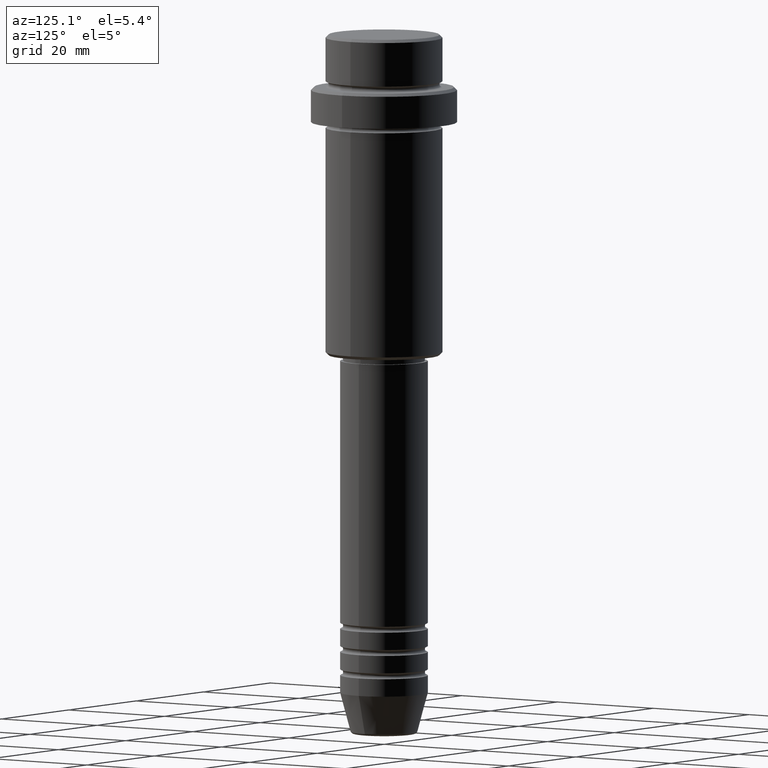
[diagram: clean part render]
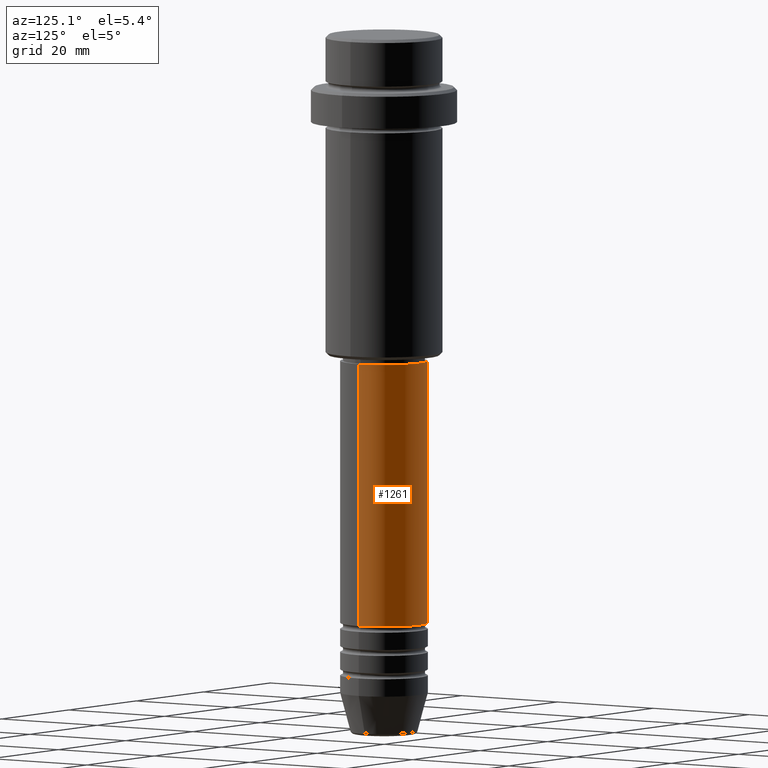
[diagram: same view with one face highlighted and labeled with its STEP entity id]
A machine part, auxiliary view. The second image highlights one B-rep face of the part: STEP entity #1261.
In plain terms, the highlighted cylindrical surface (partial cylindrical patch) has radius 7.5 mm, axis along (-0, -0, 1).
Its self-contained STEP definition (entity closure, byte-faithful):
#32 = CARTESIAN_POINT ( 'NONE',  ( -7.500000000000000000, 9.184850993605147944E-16, -56.00000000000002132 ) ) ;
#54 = VECTOR ( 'NONE', #668, 1000.000000000000000 ) ;
#156 = CYLINDRICAL_SURFACE ( 'NONE', #813, 7.500000000000000000 ) ;
#236 = ORIENTED_EDGE ( 'NONE', *, *, #1097, .F. ) ;
#303 = CARTESIAN_POINT ( 'NONE',  ( 0.000000000000000000, 0.000000000000000000, -56.00000000000002132 ) ) ;
#316 = DIRECTION ( 'NONE',  ( 1.000000000000000000, 0.000000000000000000, 0.000000000000000000 ) ) ;
#320 = AXIS2_PLACEMENT_3D ( 'NONE', #303, #1070, #316 ) ;
#329 = VERTEX_POINT ( 'NONE', #1182 ) ;
#350 = LINE ( 'NONE', #672, #1408 ) ;
#353 = EDGE_LOOP ( 'NONE', ( #632, #1282, #441, #236 ) ) ;
#441 = ORIENTED_EDGE ( 'NONE', *, *, #1398, .F. ) ;
#487 = DIRECTION ( 'NONE',  ( -0.000000000000000000, -0.000000000000000000, 1.000000000000000000 ) ) ;
#501 = AXIS2_PLACEMENT_3D ( 'NONE', #512, #959, #736 ) ;
#512 = CARTESIAN_POINT ( 'NONE',  ( 0.000000000000000000, 0.000000000000000000, -100.9999999999999005 ) ) ;
#572 = CARTESIAN_POINT ( 'NONE',  ( 7.500000000000000000, 0.000000000000000000, 0.000000000000000000 ) ) ;
#595 = CARTESIAN_POINT ( 'NONE',  ( 0.000000000000000000, 0.000000000000000000, 0.000000000000000000 ) ) ;
#603 = VERTEX_POINT ( 'NONE', #882 ) ;
#632 = ORIENTED_EDGE ( 'NONE', *, *, #769, .T. ) ;
#647 = CARTESIAN_POINT ( 'NONE',  ( 7.500000000000000000, 0.000000000000000000, -56.00000000000002132 ) ) ;
#668 = DIRECTION ( 'NONE',  ( -0.000000000000000000, -0.000000000000000000, 1.000000000000000000 ) ) ;
#672 = CARTESIAN_POINT ( 'NONE',  ( -7.500000000000000000, 9.184850993605147944E-16, 0.000000000000000000 ) ) ;
#736 = DIRECTION ( 'NONE',  ( 1.000000000000000000, 0.000000000000000000, 0.000000000000000000 ) ) ;
#769 = EDGE_CURVE ( 'NONE', #603, #329, #1062, .T. ) ;
#785 = LINE ( 'NONE', #572, #54 ) ;
#813 = AXIS2_PLACEMENT_3D ( 'NONE', #595, #487, #919 ) ;
#882 = CARTESIAN_POINT ( 'NONE',  ( 7.500000000000000000, 0.000000000000000000, -100.9999999999999005 ) ) ;
#894 = VERTEX_POINT ( 'NONE', #647 ) ;
#919 = DIRECTION ( 'NONE',  ( 1.000000000000000000, 0.000000000000000000, 0.000000000000000000 ) ) ;
#926 = CIRCLE ( 'NONE', #320, 7.500000000000000000 ) ;
#959 = DIRECTION ( 'NONE',  ( -0.000000000000000000, -0.000000000000000000, 1.000000000000000000 ) ) ;
#1036 = FACE_OUTER_BOUND ( 'NONE', #353, .T. ) ;
#1062 = CIRCLE ( 'NONE', #501, 7.500000000000000000 ) ;
#1070 = DIRECTION ( 'NONE',  ( -0.000000000000000000, -0.000000000000000000, 1.000000000000000000 ) ) ;
#1084 = EDGE_CURVE ( 'NONE', #329, #1210, #350, .T. ) ;
#1097 = EDGE_CURVE ( 'NONE', #603, #894, #785, .T. ) ;
#1102 = DIRECTION ( 'NONE',  ( -0.000000000000000000, -0.000000000000000000, 1.000000000000000000 ) ) ;
#1182 = CARTESIAN_POINT ( 'NONE',  ( -7.500000000000000000, 9.184850993605147944E-16, -100.9999999999999005 ) ) ;
#1210 = VERTEX_POINT ( 'NONE', #32 ) ;
#1261 = ADVANCED_FACE ( 'NONE', ( #1036 ), #156, .T. ) ;
#1282 = ORIENTED_EDGE ( 'NONE', *, *, #1084, .T. ) ;
#1398 = EDGE_CURVE ( 'NONE', #894, #1210, #926, .T. ) ;
#1408 = VECTOR ( 'NONE', #1102, 1000.000000000000000 ) ;